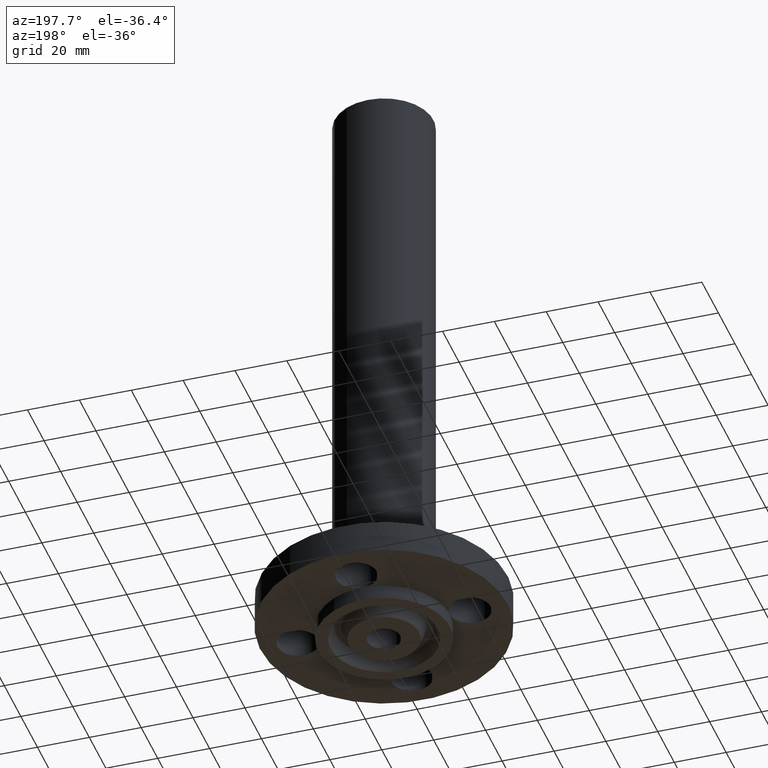
[diagram: clean part render]
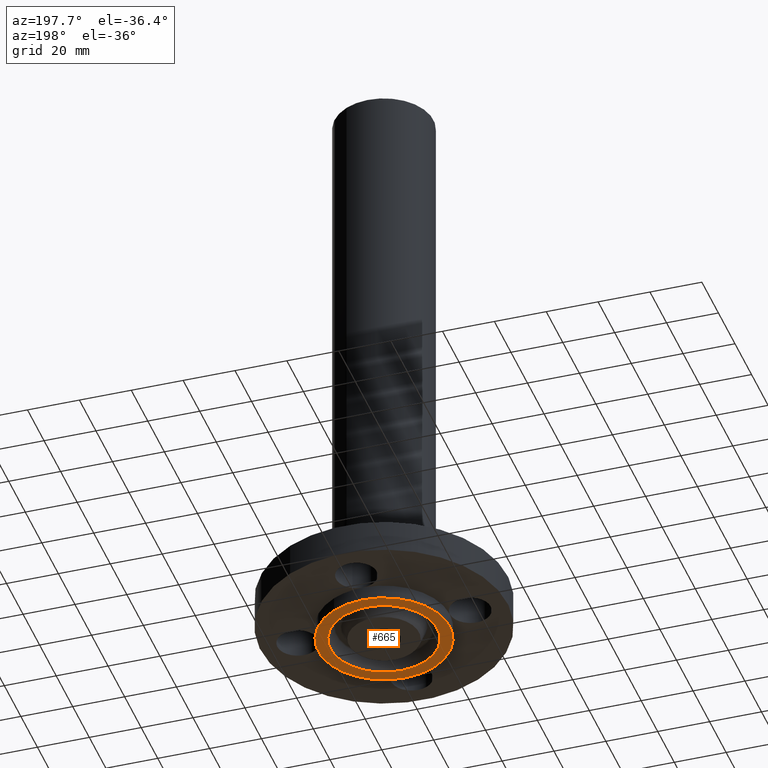
[diagram: same view with one face highlighted and labeled with its STEP entity id]
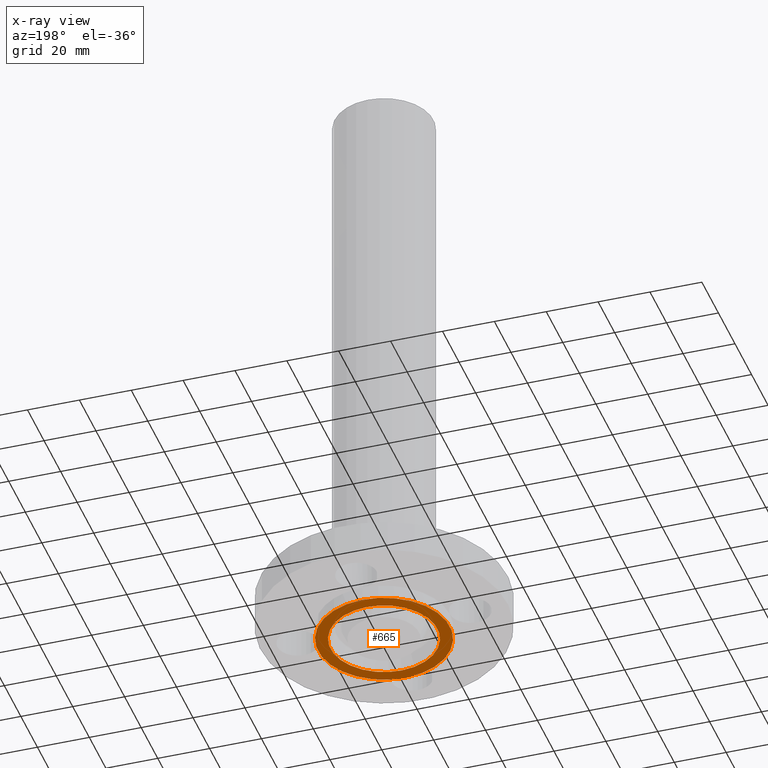
[diagram: x-ray of the same camera — body ghosted, the highlighted face saturated]
A machine part, auxiliary view. The second image highlights one B-rep face of the part: STEP entity #665.
The next image is the same camera in x-ray: the body ghosted, the highlighted face saturated — about 0% of this face is hidden behind the body in this view.
In plain terms, the highlighted planar face has unit normal (0, 0, -1).
Its self-contained STEP definition (entity closure, byte-faithful):
#423=AXIS2_PLACEMENT_3D('Plane Axis2P3D',#420,#421,#422) ;
#614=AXIS2_PLACEMENT_3D('Circle Axis2P3D',#612,#613,$) ;
#633=AXIS2_PLACEMENT_3D('Circle Axis2P3D',#631,#632,$) ;
#645=AXIS2_PLACEMENT_3D('Circle Axis2P3D',#643,#644,$) ;
#654=AXIS2_PLACEMENT_3D('Circle Axis2P3D',#652,#653,$) ;
#420=CARTESIAN_POINT('Axis2P3D Location',(0.,0.250000000001,-0.219000000001)) ;
#609=CARTESIAN_POINT('Vertex',(-0.389533250117,-0.713035831539,-0.219000000001)) ;
#612=CARTESIAN_POINT('Axis2P3D Location',(0.,0.,-0.219000000001)) ;
#616=CARTESIAN_POINT('Vertex',(0.389533250117,0.713035831539,-0.219000000001)) ;
#631=CARTESIAN_POINT('Axis2P3D Location',(0.,0.,-0.219000000001)) ;
#643=CARTESIAN_POINT('Axis2P3D Location',(0.,0.,-0.219000000001)) ;
#647=CARTESIAN_POINT('Vertex',(-0.479425538606,-0.877582561894,-0.219000000001)) ;
#649=CARTESIAN_POINT('Vertex',(0.479425538606,0.877582561894,-0.219000000001)) ;
#652=CARTESIAN_POINT('Axis2P3D Location',(0.,0.,-0.219000000001)) ;
#421=DIRECTION('Axis2P3D Direction',(0.,0.,-0.0393700787402)) ;
#422=DIRECTION('Axis2P3D XDirection',(0.0393700787402,0.,0.)) ;
#613=DIRECTION('Axis2P3D Direction',(0.,0.,-0.0393700787402)) ;
#632=DIRECTION('Axis2P3D Direction',(0.,0.,-0.0393700787402)) ;
#644=DIRECTION('Axis2P3D Direction',(0.,0.,-0.0393700787402)) ;
#653=DIRECTION('Axis2P3D Direction',(0.,0.,-0.0393700787402)) ;
#658=ORIENTED_EDGE('',*,*,#651,.T.) ;
#659=ORIENTED_EDGE('',*,*,#656,.T.) ;
#662=ORIENTED_EDGE('',*,*,#635,.F.) ;
#663=ORIENTED_EDGE('',*,*,#618,.F.) ;
#664=FACE_BOUND('',#661,.T.) ;
#665=ADVANCED_FACE('PartBody',(#660,#664),#424,.T.) ;
#615=CIRCLE('generated circle',#614,0.812500000003) ;
#634=CIRCLE('generated circle',#633,0.812500000003) ;
#646=CIRCLE('generated circle',#645,1.) ;
#655=CIRCLE('generated circle',#654,1.) ;
#618=EDGE_CURVE('',#610,#617,#615,.T.) ;
#635=EDGE_CURVE('',#617,#610,#634,.T.) ;
#651=EDGE_CURVE('',#648,#650,#646,.T.) ;
#656=EDGE_CURVE('',#650,#648,#655,.T.) ;
#657=EDGE_LOOP('',(#658,#659)) ;
#661=EDGE_LOOP('',(#662,#663)) ;
#660=FACE_OUTER_BOUND('',#657,.T.) ;
#424=PLANE('',#423) ;
#610=VERTEX_POINT('',#609) ;
#617=VERTEX_POINT('',#616) ;
#648=VERTEX_POINT('',#647) ;
#650=VERTEX_POINT('',#649) ;